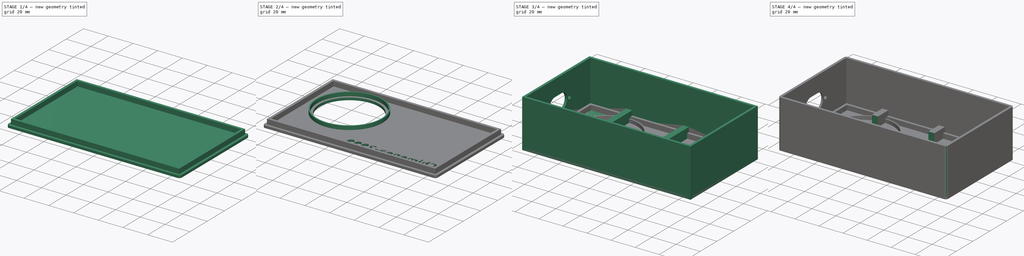
[diagram: build sequence overview — one tinted view per stage of 4, left to right]
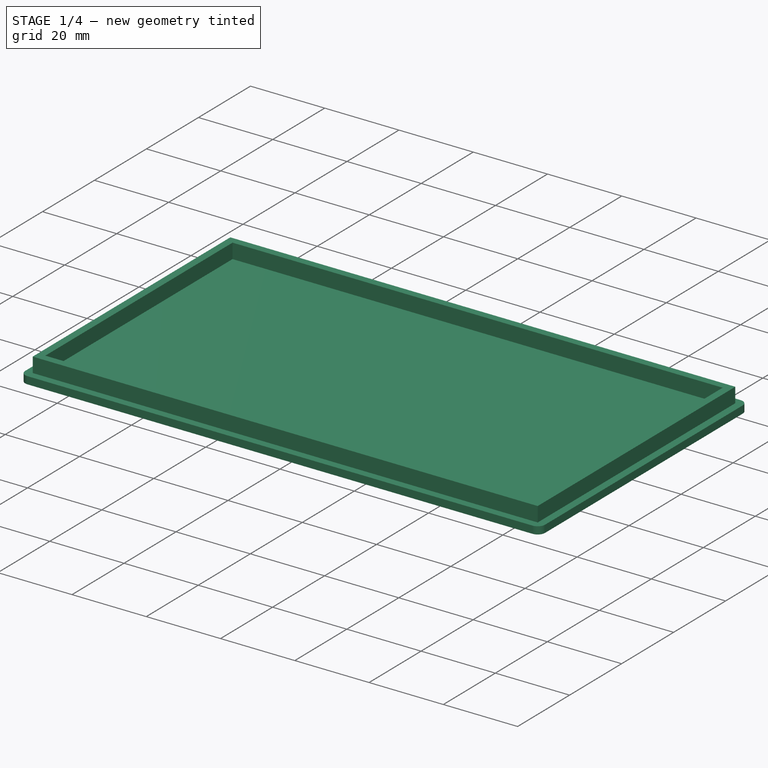
[diagram: stage 1 of 4 — iso view after this stage's code; geometry added in this stage tinted green]
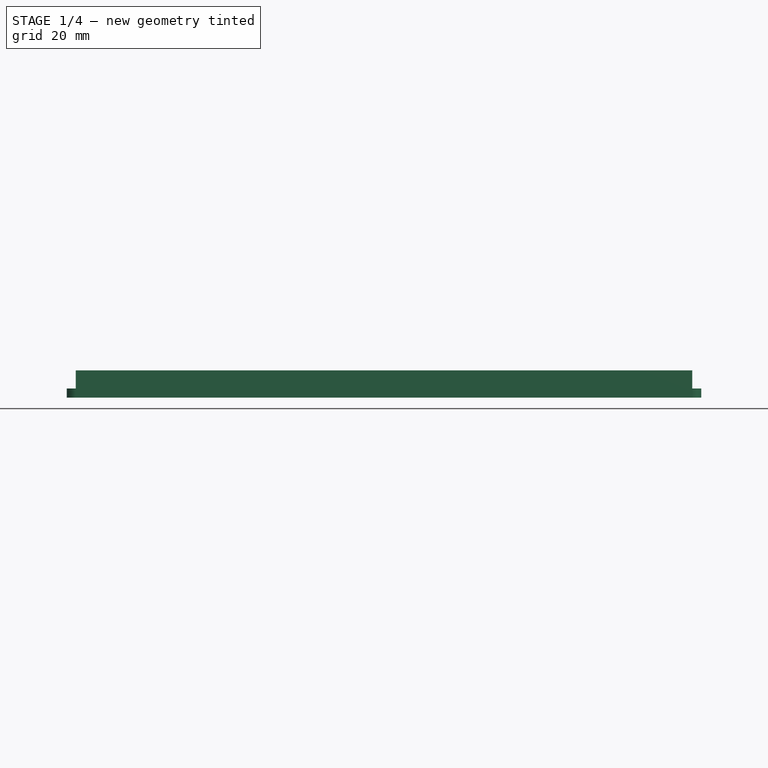
[diagram: stage 1 of 4 — front view after this stage's code; geometry added in this stage tinted green]
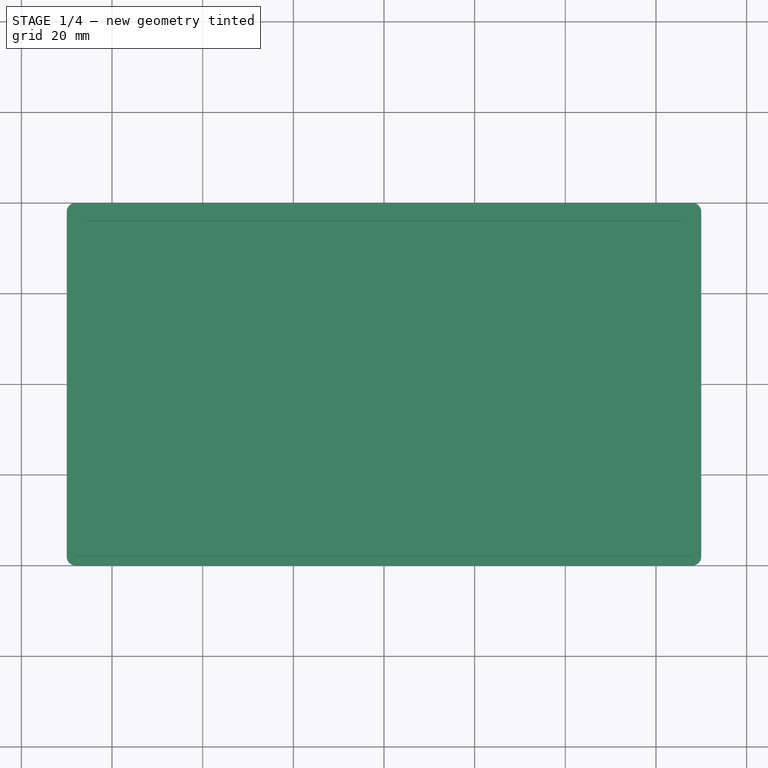
[diagram: stage 1 of 4 — top view after this stage's code; geometry added in this stage tinted green]
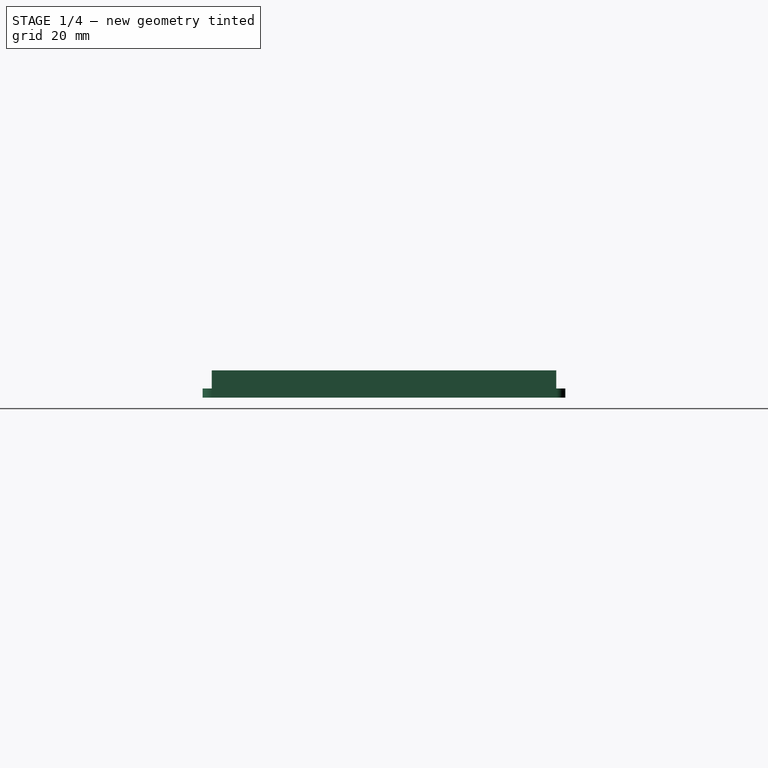
[diagram: stage 1 of 4 — right view after this stage's code; geometry added in this stage tinted green]
FCSTD DOCUMENT  (FreeCAD 1.0R39109 (Git))
Label: chimenea2000
License: All rights reserved
LicenseURL: https://en.wikipedia.org/wiki/All_rights_reserved
objects: Sketcher::SketchObject×10, PartDesign::Pocket×6, PartDesign::Pad×4, PartDesign::Fillet×3, PartDesign::Body×2, Part::Part2DObjectPython×1
note: 62 computed .brp shape members not serialized (recipe doc carries the construction recipe); baked Part::Feature solids carry a one-line shape summary decoded from their .brp

FEATURE [PartDesign::Body] Body
  AllowCompound = false
  Group = -> [Sketch,Pad,Sketch001,Pocket,Sketch002,Pocket001,Sketch003,Pocket002,Fillet,Fillet001,Sketch004,Pocket003]
  Origin = -> Origin
  Tip = -> Pocket003
FEATURE [Sketcher::SketchObject] Sketch005
  ArcFitTolerance = 1e-06
  AttachmentSupport = -> [XY_Plane001]
  FullyConstrained = true
  MakeInternals = false
  MapMode = 5
  sketch-geometry (4):
    g0: LineSegment StartX=-70 StartY=40 StartZ=0 EndX=-70 EndY=-40 EndZ=0
    g1: LineSegment StartX=-70 StartY=-40 StartZ=0 EndX=70 EndY=-40 EndZ=0
    g2: LineSegment StartX=70 StartY=-40 StartZ=0 EndX=70 EndY=40 EndZ=0
    g3: LineSegment StartX=70 StartY=40 StartZ=0 EndX=-70 EndY=40 EndZ=0
  constraints (11):
    c: Coincident(g0,g1)
    c: Coincident(g1,g2)
    c: Coincident(g2,g3)
    c: Coincident(g3,g0)
    c: Vertical(g0)
    c: Vertical(g2)
    c: Horizontal(g1)
    c: Horizontal(g3)
    c: DistanceX(g3,g3) = 140
    c: DistanceY(g0,g0) = 80
    c: Symmetric(g0,g1,g-1)
FEATURE [PartDesign::Pad] Pad001
  Direction = (0,0,1)
  Length = 2
  Length2 = 10
  Profile = -> Sketch005
  ReferenceAxis = -> Sketch005 [N_Axis]
  Refine = true
  Suppressed = false
  Type = 0
FEATURE [Sketcher::SketchObject] Sketch006
  ArcFitTolerance = 1e-06
  AttachmentSupport = -> [Pad001]
  FullyConstrained = true
  MakeInternals = false
  MapMode = 5
  Placement = pos=(0,0,2) rot=(0,0,1;0rad)
  sketch-geometry (8):
    g0: LineSegment StartX=-68 StartY=38 StartZ=0 EndX=-68 EndY=-38 EndZ=0
    g1: LineSegment StartX=-68 StartY=-38 StartZ=0 EndX=68 EndY=-38 EndZ=0
    g2: LineSegment StartX=68 StartY=-38 StartZ=0 EndX=68 EndY=38 EndZ=0
    g3: LineSegment StartX=68 StartY=38 StartZ=0 EndX=-68 EndY=38 EndZ=0
    g4: LineSegment StartX=-66 StartY=36 StartZ=0 EndX=-66 EndY=-36 EndZ=0
    g5: LineSegment StartX=-66 StartY=-36 StartZ=0 EndX=66 EndY=-36 EndZ=0
    g6: LineSegment StartX=66 StartY=-36 StartZ=0 EndX=66 EndY=36 EndZ=0
    g7: LineSegment StartX=66 StartY=36 StartZ=0 EndX=-66 EndY=36 EndZ=0
  constraints (22):
    c: Coincident(g0,g1)
    c: Coincident(g1,g2)
    c: Coincident(g2,g3)
    c: Coincident(g3,g0)
    c: Vertical(g0)
    c: Vertical(g2)
    c: Horizontal(g1)
    c: Horizontal(g3)
    c: Symmetric(g1,g0,g-1)
    c: DistanceX(g3,g3) = 136
    c: DistanceY(g0,g0) = 76
    c: Coincident(g4,g5)
    c: Coincident(g5,g6)
    c: Coincident(g6,g7)
    c: Coincident(g7,g4)
    c: Vertical(g4)
    c: Vertical(g6)
    c: Horizontal(g5)
    c: Horizontal(g7)
    c: Symmetric(g5,g4,g-1)
    c: DistanceX(g0,g4) = 2
    c: DistanceY(g4,g0) = 2
FEATURE [PartDesign::Pad] Pad002
  BaseFeature = -> Pad001
  Direction = (0,0,1)
  Length = 4
  Length2 = 10
  Profile = -> Sketch006
  ReferenceAxis = -> Sketch006 [N_Axis]
  Refine = true
  Suppressed = false
  Type = 0
FEATURE [PartDesign::Fillet] Fillet002
  Base = -> Pad002 [Edge5,Edge8,Edge2,Edge1]
  BaseFeature = -> Pad002
  Radius = 2
  Refine = true
  SupportTransform = false
  Suppressed = false
  UseAllEdges = false
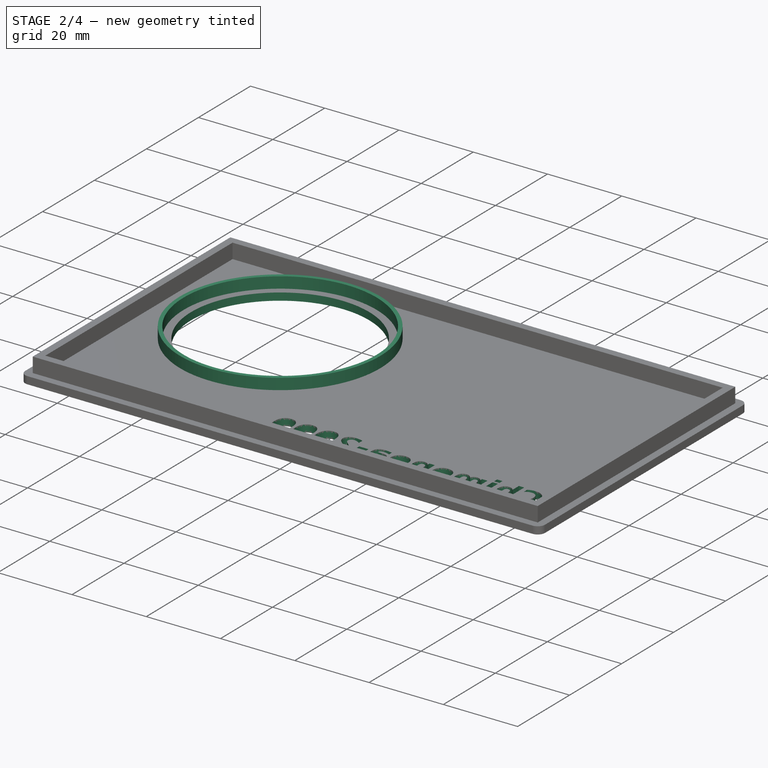
[diagram: stage 2 of 4 — iso view after this stage's code; geometry added in this stage tinted green]
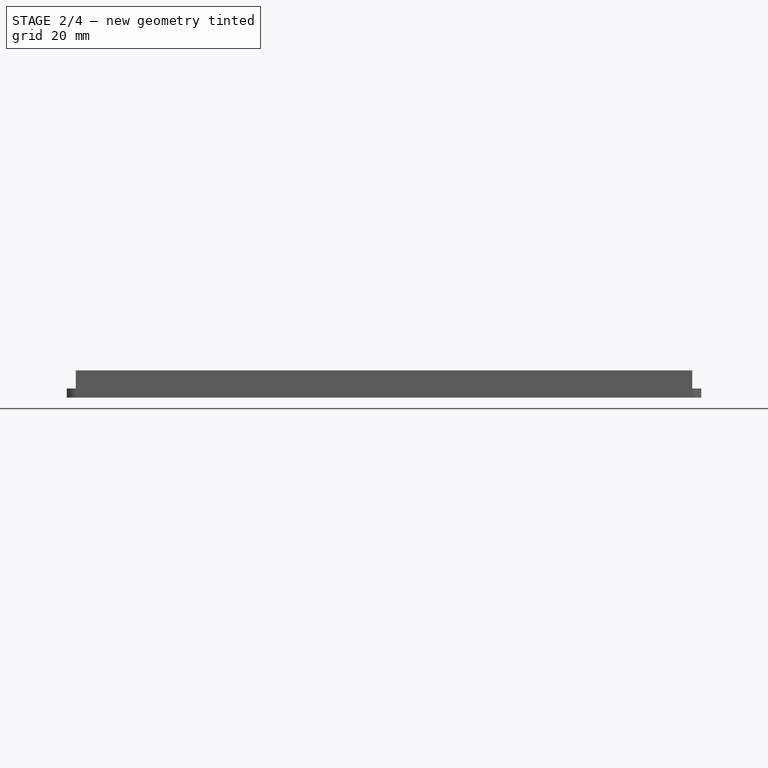
[diagram: stage 2 of 4 — front view after this stage's code; geometry added in this stage tinted green]
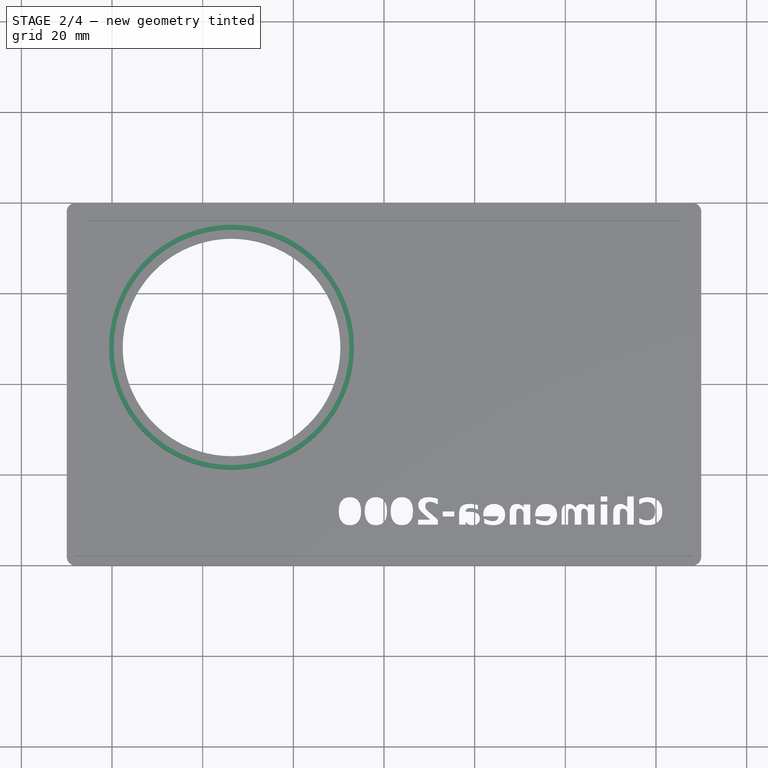
[diagram: stage 2 of 4 — top view after this stage's code; geometry added in this stage tinted green]
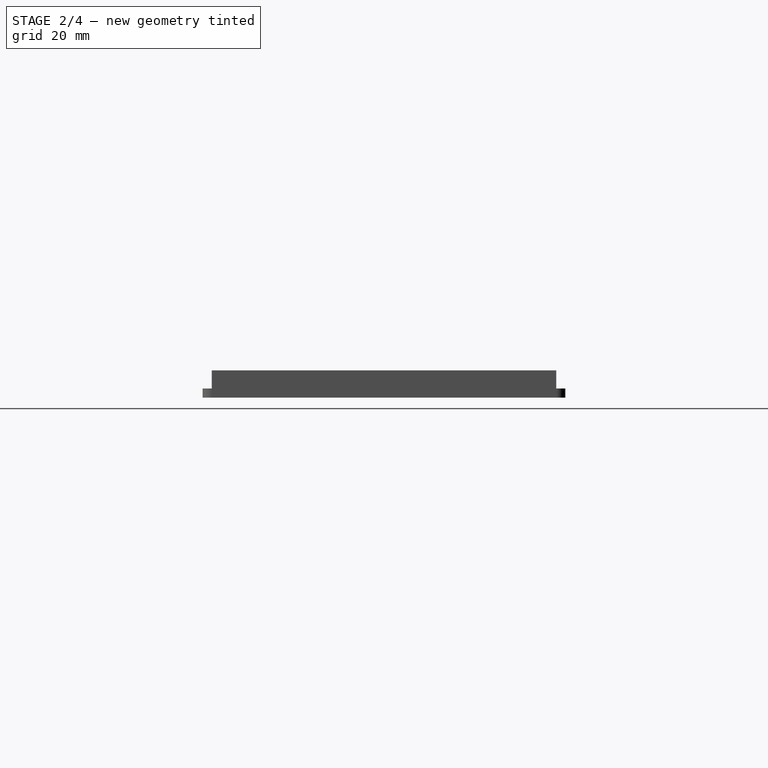
[diagram: stage 2 of 4 — right view after this stage's code; geometry added in this stage tinted green]
FEATURE [Part::Part2DObjectPython] ShapeString  # Draft 2D object (typed FeaturePython)
  FontFile = <path>
  Fuse = false
  Justification = 6
  JustificationReference = 0
  KeepLeftMargin = false
  MakeFace = true
  ObliqueAngle = 0
  Placement = pos=(61.42,-31.01,0) rot=(0,-1,0;3.14159rad)
  ScaleToSize = true
  Size = 6
  String = Chimenea-2000
  Tracking = 0
FEATURE [PartDesign::Pocket] Pocket004
  BaseFeature = -> Fillet002
  Direction = (1e-16,0,1)
  Length = 5
  Length2 = 5
  Profile = -> ShapeString
  ReferenceAxis = -> ShapeString [N_Axis]
  Refine = true
  Suppressed = false
  Type = 0
FEATURE [Sketcher::SketchObject] Sketch007
  ArcFitTolerance = 1e-06
  AttachmentSupport = -> [Pocket004]
  FullyConstrained = true
  MakeInternals = false
  MapMode = 5
  Placement = pos=(0,0,0) rot=(1,0,0;3.14159rad)
FEATURE [Sketcher::SketchObject] Sketch008
  ArcFitTolerance = 1e-06
  AttachmentSupport = -> [Pocket004]
  FullyConstrained = false
  MakeInternals = false
  MapMode = 5
  Placement = pos=(0,0,0) rot=(1,0,0;3.14159rad)
  sketch-geometry (1):
    g0: Circle CenterX=-33.6277 CenterY=-8.09743 CenterZ=0 NormalX=0 NormalY=0 NormalZ=1 AngleXU=0 Radius=24
  constraints (1):
    c: Diameter(g0) = 48
FEATURE [PartDesign::Pocket] Pocket005
  BaseFeature = -> Pocket004
  Direction = (0,0,1)
  Length = 5
  Length2 = 5
  Profile = -> Sketch008
  ReferenceAxis = -> Sketch008 [N_Axis]
  Refine = true
  Suppressed = false
  Type = 0
FEATURE [Sketcher::SketchObject] Sketch009
  ArcFitTolerance = 1e-06
  AttachmentSupport = -> [Pocket005]
  ExternalGeometry = -> [Pocket005]
  FullyConstrained = true
  MakeInternals = false
  MapMode = 5
  Placement = pos=(0,0,2) rot=(0,0,1;0rad)
  sketch-geometry (2):
    g0: Circle CenterX=-33.6277 CenterY=8.09743 CenterZ=0 NormalX=0 NormalY=0 NormalZ=1 AngleXU=0 Radius=26
    g1: Circle CenterX=-33.6277 CenterY=8.09743 CenterZ=0 NormalX=0 NormalY=0 NormalZ=1 AngleXU=0 Radius=27
  constraints (4):
    c: Coincident(g0,g-3)
    c: Coincident(g1,g0)
    c: Diameter(g0) = 52
    c: Diameter(g1) = 54
FEATURE [PartDesign::Pad] Pad003
  BaseFeature = -> Pocket005
  Direction = (0,0,1)
  Length = 3
  Length2 = 10
  Profile = -> Sketch009
  ReferenceAxis = -> Sketch009 [N_Axis]
  Refine = true
  Suppressed = false
  Type = 0
FEATURE [PartDesign::Body] Body001  label="tapa"
  AllowCompound = false
  Group = -> [Sketch005,Pad001,Sketch006,Pad002,Fillet002,ShapeString,Pocket004,Sketch007,Sketch008,Pocket005,Sketch009,Pad003]
  Origin = -> Origin001
  Placement = pos=(0,7e-16,43) rot=(1,0,0;3.14159rad)
  Tip = -> Pad003
note: 1 file-system path scrubbed to <path> (originals preserved in the JSON sidecar)
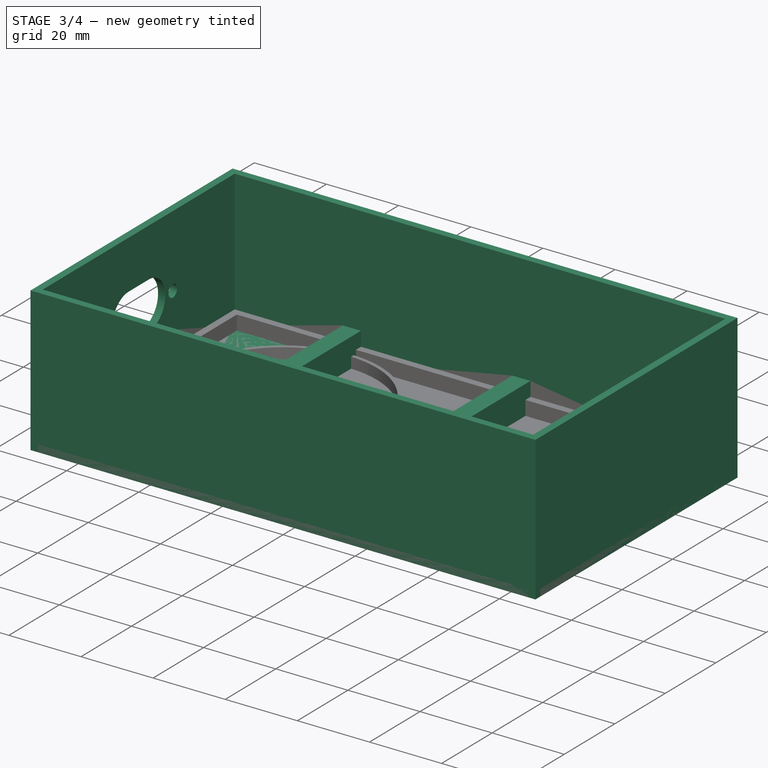
[diagram: stage 3 of 4 — iso view after this stage's code; geometry added in this stage tinted green]
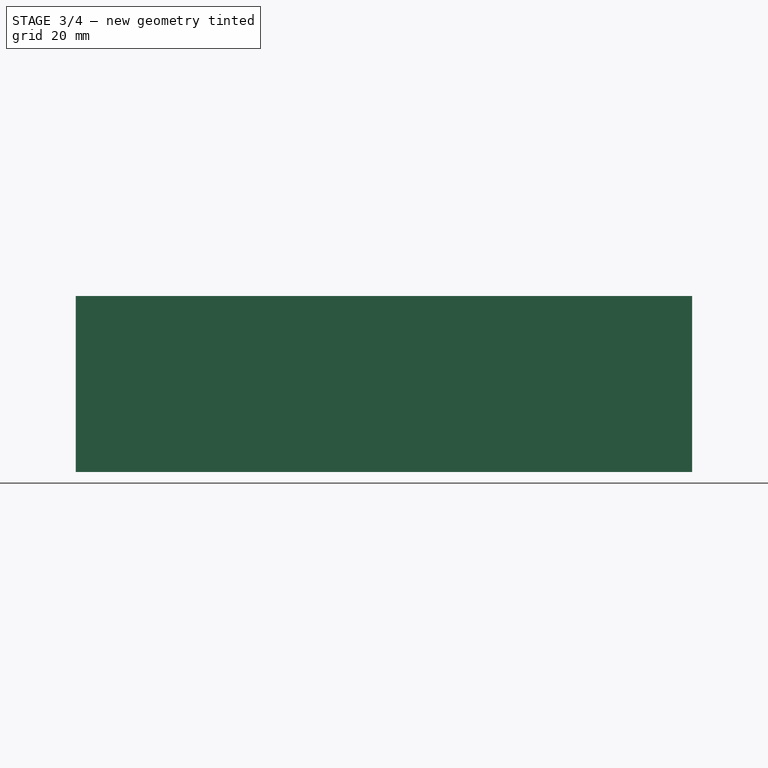
[diagram: stage 3 of 4 — front view after this stage's code; geometry added in this stage tinted green]
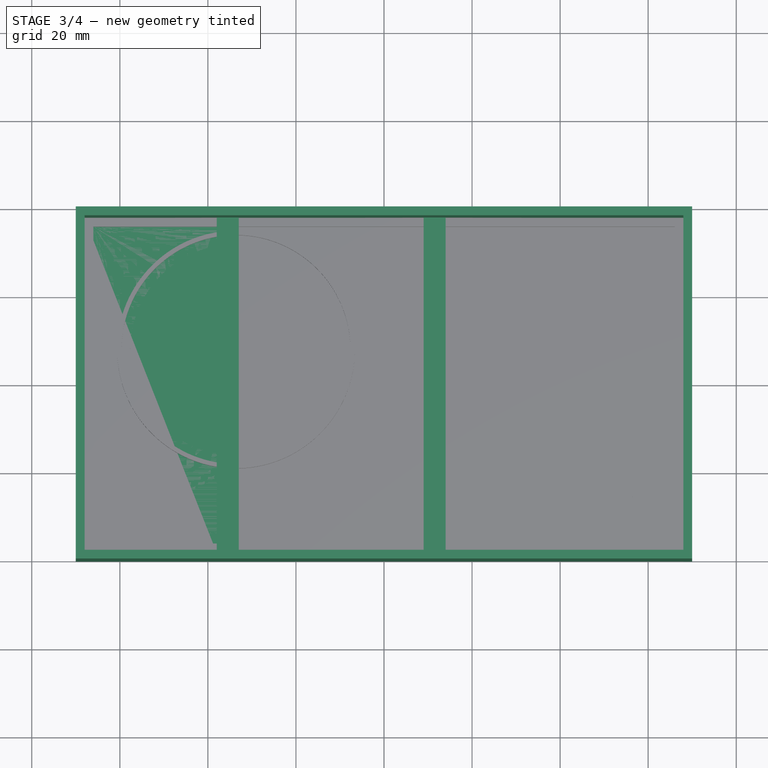
[diagram: stage 3 of 4 — top view after this stage's code; geometry added in this stage tinted green]
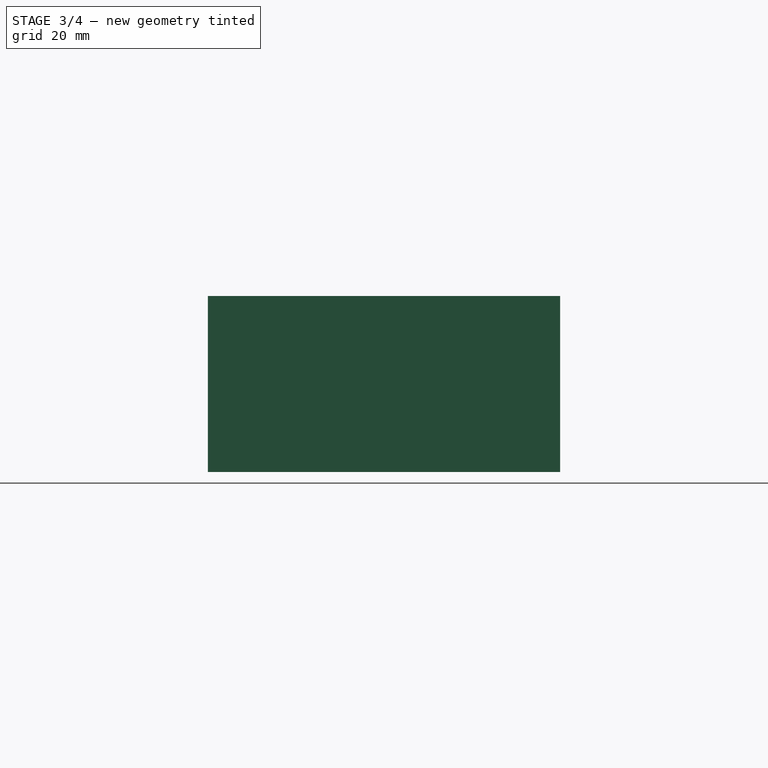
[diagram: stage 3 of 4 — right view after this stage's code; geometry added in this stage tinted green]
FEATURE [Sketcher::SketchObject] Sketch
  ArcFitTolerance = 1e-06
  AttachmentSupport = -> [XY_Plane]
  FullyConstrained = true
  MakeInternals = false
  MapMode = 5
  sketch-geometry (4):
    g0: LineSegment StartX=-70 StartY=40 StartZ=0 EndX=-70 EndY=-40 EndZ=0
    g1: LineSegment StartX=-70 StartY=-40 StartZ=0 EndX=70 EndY=-40 EndZ=0
    g2: LineSegment StartX=70 StartY=-40 StartZ=0 EndX=70 EndY=40 EndZ=0
    g3: LineSegment StartX=70 StartY=40 StartZ=0 EndX=-70 EndY=40 EndZ=0
  constraints (11):
    c: Coincident(g0,g1)
    c: Coincident(g1,g2)
    c: Coincident(g2,g3)
    c: Coincident(g3,g0)
    c: Vertical(g0)
    c: Vertical(g2)
    c: Horizontal(g1)
    c: Horizontal(g3)
    c: Symmetric(g0,g1,g-1)
    c: DistanceX(g3,g3) = 140
    c: DistanceY(g0,g0) = 80
FEATURE [PartDesign::Pad] Pad
  Direction = (0,0,1)
  Length = 40
  Length2 = 10
  Profile = -> Sketch
  ReferenceAxis = -> Sketch [N_Axis]
  Refine = true
  Suppressed = false
  Type = 0
FEATURE [Sketcher::SketchObject] Sketch001
  ArcFitTolerance = 1e-06
  AttachmentSupport = -> [Pad]
  ExternalGeometry = -> [Pad]
  FullyConstrained = true
  MakeInternals = false
  MapMode = 5
  Placement = pos=(0,0,40) rot=(0,0,1;0rad)
  sketch-geometry (12):
    g0: LineSegment StartX=-68 StartY=-38 StartZ=0 EndX=-68 EndY=38 EndZ=0
    g1: LineSegment StartX=-68 StartY=38 StartZ=0 EndX=-38 EndY=38 EndZ=0
    g2: LineSegment StartX=-38 StartY=38 StartZ=0 EndX=-38 EndY=-38 EndZ=0
    g3: LineSegment StartX=-38 StartY=-38 StartZ=0 EndX=-68 EndY=-38 EndZ=0
    g4: LineSegment StartX=-33 StartY=38 StartZ=0 EndX=-33 EndY=-38 EndZ=0
    g5: LineSegment StartX=-33 StartY=-38 StartZ=0 EndX=9 EndY=-38 EndZ=0
    g6: LineSegment StartX=9 StartY=-38 StartZ=0 EndX=9 EndY=38 EndZ=0
    g7: LineSegment StartX=9 StartY=38 StartZ=0 EndX=-33 EndY=38 EndZ=0
    g8: LineSegment StartX=14 StartY=38 StartZ=0 EndX=14 EndY=-38 EndZ=0
    g9: LineSegment StartX=14 StartY=-38 StartZ=0 EndX=68 EndY=-38 EndZ=0
    g10: LineSegment StartX=68 StartY=-38 StartZ=0 EndX=68 EndY=38 EndZ=0
    g11: LineSegment StartX=68 StartY=38 StartZ=0 EndX=14 EndY=38 EndZ=0
  constraints (36):
    c: Vertical(g0)
    c: Coincident(g0,g1)
    c: Horizontal(g1)
    c: Coincident(g1,g2)
    c: Vertical(g2)
    c: Coincident(g2,g3)
    c: Coincident(g3,g0)
    c: Horizontal(g3)
    c: Vertical(g4)
    c: Coincident(g4,g5)
    c: Horizontal(g5)
    c: Coincident(g5,g6)
    c: Vertical(g6)
    c: Coincident(g6,g7)
    c: Coincident(g7,g4)
    c: Horizontal(g7)
    c: Vertical(g8)
    c: Coincident(g8,g9)
    c: Horizontal(g9)
    c: Coincident(g9,g10)
    c: Vertical(g10)
    c: Coincident(g10,g11)
    c: Coincident(g11,g8)
    c: Horizontal(g11)
    c: Horizontal(g0,g4)
    c: Horizontal(g4,g8)
    c: DistanceY(g0,g-4) = 2
    c: DistanceX(g-4,g0) = 2
    c: DistanceY(g-4,g0) = 2
    c: Equal(g4,g0)
    c: Equal(g8,g0)
    c: DistanceX(g10,g-5) = 2
    c: DistanceX(g1,g1) = 30
    c: DistanceX(g1,g4) = 5
    c: DistanceX(g6,g8) = 5
    c: DistanceX(g1,g8) = 52
FEATURE [PartDesign::Pocket] Pocket
  BaseFeature = -> Pad
  Direction = (0,0,-1)
  Length = 38
  Length2 = 5
  Profile = -> Sketch001
  ReferenceAxis = -> Sketch001 [N_Axis]
  Refine = true
  Suppressed = false
  Type = 0
FEATURE [Sketcher::SketchObject] Sketch002
  ArcFitTolerance = 1e-06
  AttachmentSupport = -> [Pocket]
  ExternalGeometry = -> [Pocket]
  FullyConstrained = true
  MakeInternals = false
  MapMode = 5
  Placement = pos=(0,0,40) rot=(0,0,1;0rad)
  sketch-geometry (4):
    g0: LineSegment StartX=-68 StartY=38 StartZ=0 EndX=-68 EndY=-38 EndZ=0
    g1: LineSegment StartX=-68 StartY=-38 StartZ=0 EndX=68 EndY=-38 EndZ=0
    g2: LineSegment StartX=68 StartY=-38 StartZ=0 EndX=68 EndY=38 EndZ=0
    g3: LineSegment StartX=68 StartY=38 StartZ=0 EndX=-68 EndY=38 EndZ=0
  constraints (10):
    c: Coincident(g0,g1)
    c: Coincident(g1,g2)
    c: Coincident(g2,g3)
    c: Coincident(g3,g0)
    c: Vertical(g0)
    c: Vertical(g2)
    c: Horizontal(g1)
    c: Horizontal(g3)
    c: Coincident(g0,g-3)
    c: Coincident(g1,g-4)
FEATURE [PartDesign::Pocket] Pocket001
  BaseFeature = -> Pocket
  Direction = (0,0,-1)
  Length = 30
  Length2 = 5
  Profile = -> Sketch002
  ReferenceAxis = -> Sketch002 [N_Axis]
  Refine = true
  Suppressed = false
  Type = 0
FEATURE [Sketcher::SketchObject] Sketch003
  ArcFitTolerance = 1e-06
  AttachmentSupport = -> [Pocket001]
  ExternalGeometry = -> [Pocket001]
  FullyConstrained = false
  MakeInternals = false
  MapMode = 5
  Placement = pos=(-70,0,0) rot=(0.57735,-0.57735,-0.57735;2.0944rad)
  sketch-geometry (11):
    g0: ArcOfCircle CenterX=-4 CenterY=19.9803 CenterZ=0 NormalX=0 NormalY=0 NormalZ=1 AngleXU=0 Radius=6.5 StartAngle=1.5708 EndAngle=4.71466
    g1: ArcOfCircle CenterX=4 CenterY=19.9803 CenterZ=0 NormalX=0 NormalY=0 NormalZ=1 AngleXU=0 Radius=6.5 StartAngle=4.78949 EndAngle=7.85398
    g2: LineSegment StartX=-4 StartY=26.4803 StartZ=0 EndX=4 EndY=26.4803 EndZ=0
    g3: LineSegment StartX=-3.98522 StartY=13.4803 StartZ=0 EndX=4.50066 EndY=13.4996 EndZ=0
    g4: LineSegment [constr] StartX=-10.5 StartY=30.7382 StartZ=0 EndX=-10.5 EndY=5.83086 EndZ=0
    g5: LineSegment [constr] StartX=10.5 StartY=29.3771 StartZ=0 EndX=10.5 EndY=5.4906 EndZ=0
    g6: LineSegment [constr] StartX=-40 StartY=40 StartZ=0 EndX=-4 EndY=26.4803 EndZ=0
    g7: LineSegment [constr] StartX=-3.98522 StartY=13.4803 StartZ=0 EndX=-40 EndY=0 EndZ=0
    g8: LineSegment [constr] StartX=4 StartY=26.4803 StartZ=0 EndX=40 EndY=40 EndZ=0
    g9: Circle CenterX=-13.5 CenterY=19.9803 CenterZ=0 NormalX=0 NormalY=0 NormalZ=1 AngleXU=0 Radius=1.7
    g10: Circle CenterX=13.5 CenterY=19.9803 CenterZ=0 NormalX=0 NormalY=0 NormalZ=1 AngleXU=0 Radius=1.7
  constraints (25):
    c: Equal(g0,g1)
    c: Symmetric(g0,g1,g-2)
    c: Diameter(g1) = 13
    c: Vertical(g4)
    c: Vertical(g5)
    c: Tangent(g4,g0)
    c: Tangent(g5,g1)
    c: DistanceX(g4,g5) = 21
    c: Tangent(g0,g2) = 1.5708
    c: Coincident(g1,g2)
    c: Tangent(g0,g3) = -1.5708
    c: Coincident(g1,g3)
    c: Coincident(g6,g0)
    c: Coincident(g1,g8)
    c: Coincident(g7,g0)
    c: Coincident(g7,g-4)
    c: Coincident(g6,g-4)
    c: Coincident(g8,g-3)
    c: Equal(g6,g8)
    c: Equal(g8,g7)
    c: Equal(g10,g9)
    c: Diameter(g9) = 3.4
    c: Horizontal(g9,g0)
    c: DistanceX(g9,g10) = 27
    c: Symmetric(g9,g10,g-2)
FEATURE [PartDesign::Pocket] Pocket002
  BaseFeature = -> Pocket001
  Direction = (1,0,0)
  Length = 5
  Length2 = 5
  Profile = -> Sketch003
  ReferenceAxis = -> Sketch003 [N_Axis]
  Refine = true
  Suppressed = false
  Type = 0
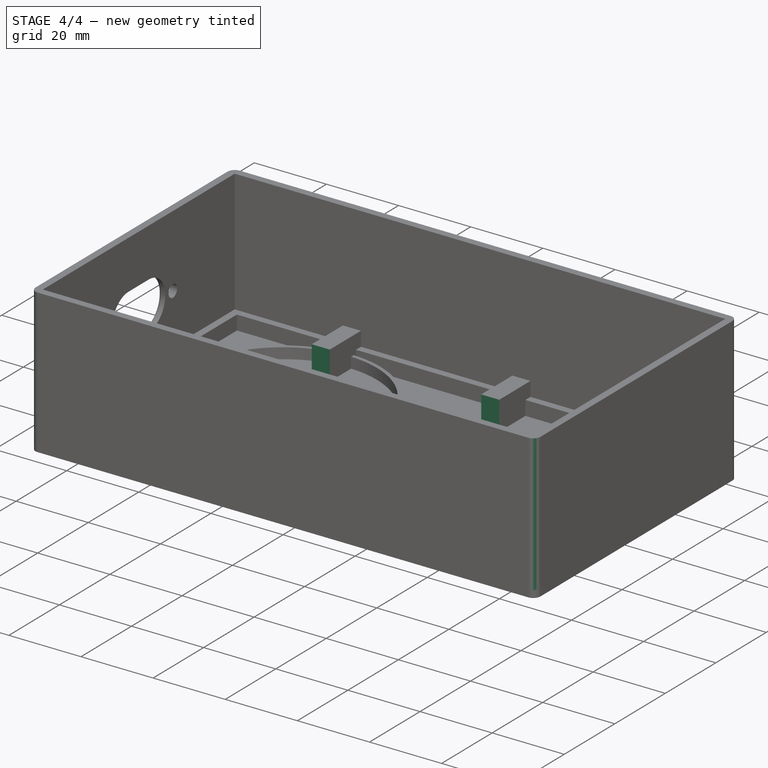
[diagram: stage 4 of 4 — iso view after this stage's code; geometry added in this stage tinted green]
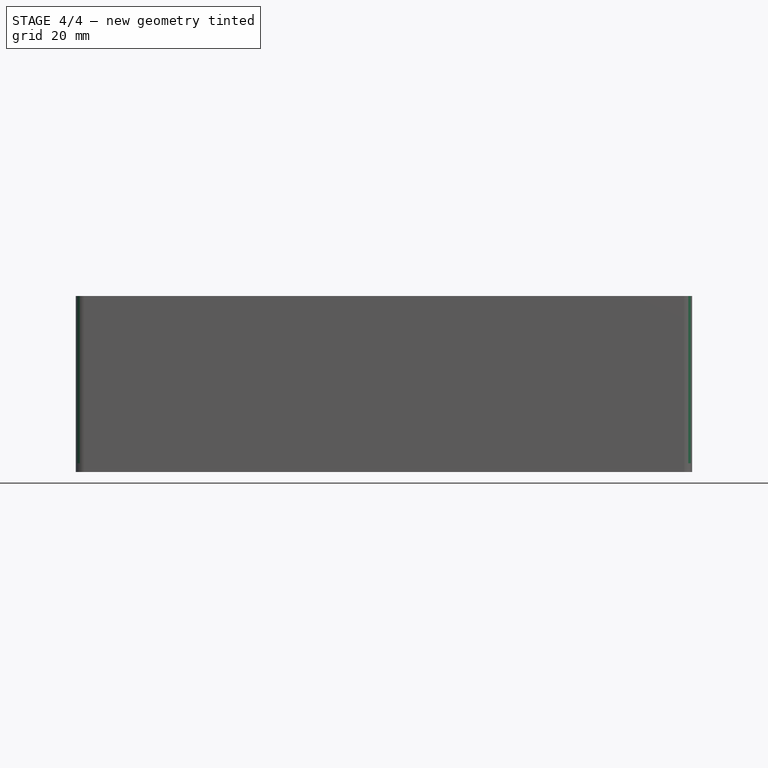
[diagram: stage 4 of 4 — front view after this stage's code; geometry added in this stage tinted green]
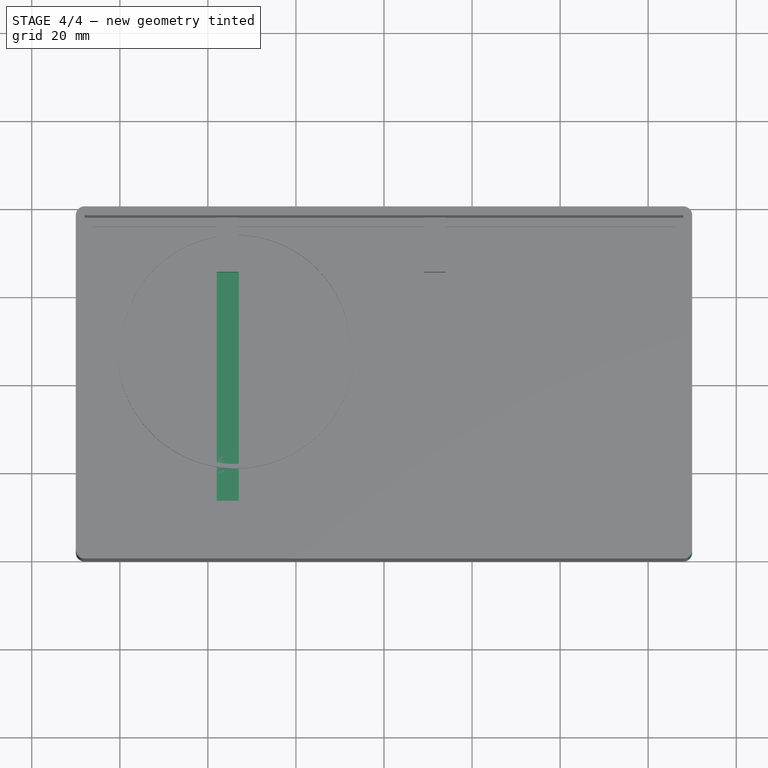
[diagram: stage 4 of 4 — top view after this stage's code; geometry added in this stage tinted green]
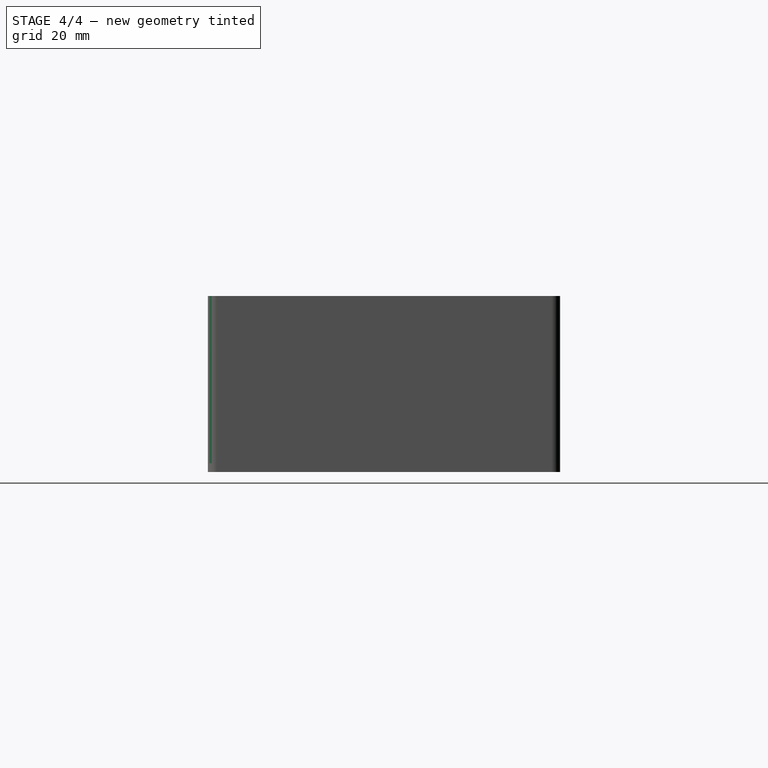
[diagram: stage 4 of 4 — right view after this stage's code; geometry added in this stage tinted green]
FEATURE [PartDesign::Fillet] Fillet
  Base = -> Pocket002 [Edge4,Edge1,Edge2,Edge14,Edge22,Edge15,Edge11,Edge12]
  BaseFeature = -> Pocket002
  Radius = 2
  Refine = true
  SupportTransform = false
  Suppressed = false
  UseAllEdges = false
FEATURE [PartDesign::Fillet] Fillet001
  Base = -> Fillet [Edge9,Edge6,Edge7,Edge8]
  BaseFeature = -> Fillet
  Radius = 1
  Refine = true
  SupportTransform = false
  Suppressed = false
  UseAllEdges = false
FEATURE [Sketcher::SketchObject] Sketch004
  ArcFitTolerance = 1e-06
  AttachmentSupport = -> [Fillet001]
  ExternalGeometry = -> [Fillet001]
  FullyConstrained = false
  MakeInternals = false
  MapMode = 5
  Placement = pos=(0,0,10) rot=(0,0,1;0rad)
  sketch-geometry (4):
    g0: LineSegment StartX=-62.2384 StartY=-26.3437 StartZ=0 EndX=-62.2384 EndY=25.6375 EndZ=0
    g1: LineSegment StartX=-62.2384 StartY=25.6375 StartZ=0 EndX=46.2793 EndY=25.6375 EndZ=0
    g2: LineSegment StartX=46.2793 StartY=25.6375 StartZ=0 EndX=46.2793 EndY=-26.3437 EndZ=0
    g3: LineSegment StartX=46.2793 StartY=-26.3437 StartZ=0 EndX=-62.2384 EndY=-26.3437 EndZ=0
  constraints (8):
    c: Coincident(g0,g1)
    c: Coincident(g1,g2)
    c: Coincident(g2,g3)
    c: Coincident(g3,g0)
    c: Vertical(g0)
    c: Vertical(g2)
    c: Horizontal(g1)
    c: Horizontal(g3)
FEATURE [PartDesign::Pocket] Pocket003
  BaseFeature = -> Fillet001
  Direction = (0,0,-1)
  Length = 8
  Length2 = 5
  Profile = -> Sketch004
  ReferenceAxis = -> Sketch004 [N_Axis]
  Refine = true
  Suppressed = false
  Type = 0
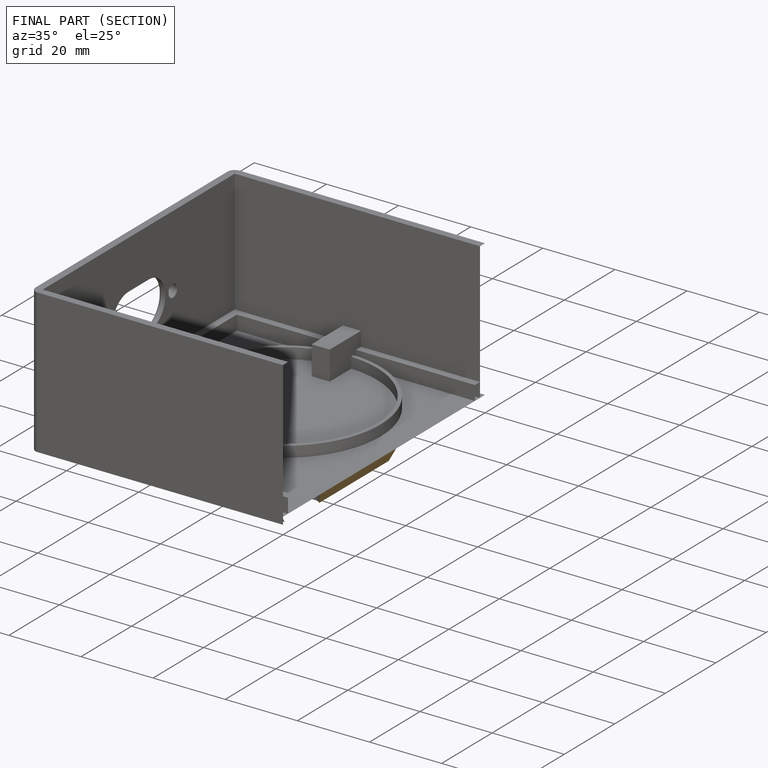
[diagram: finished part — half-section view (interior)]
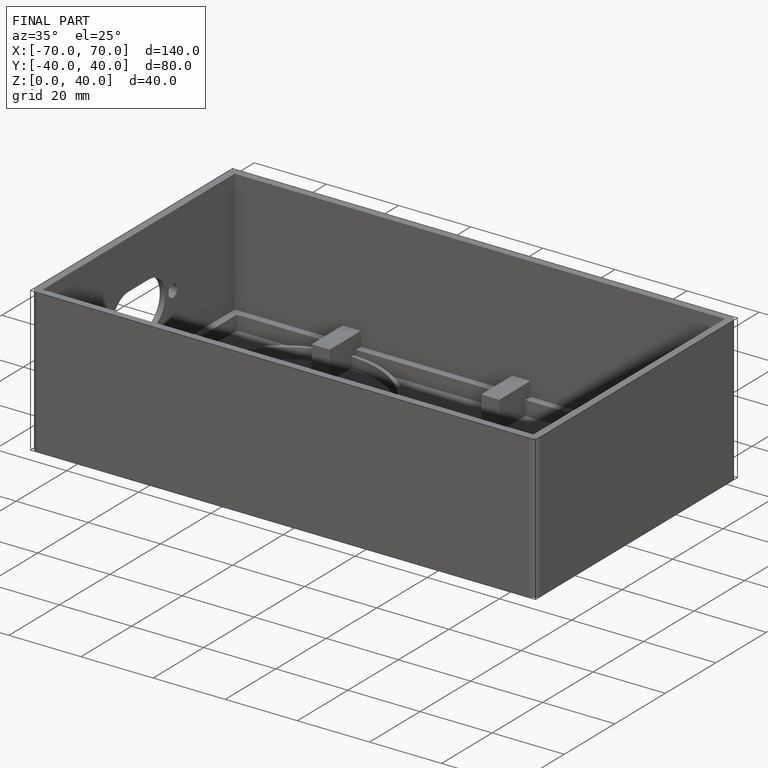
[diagram: finished part — iso view with bounding-box wireframe]
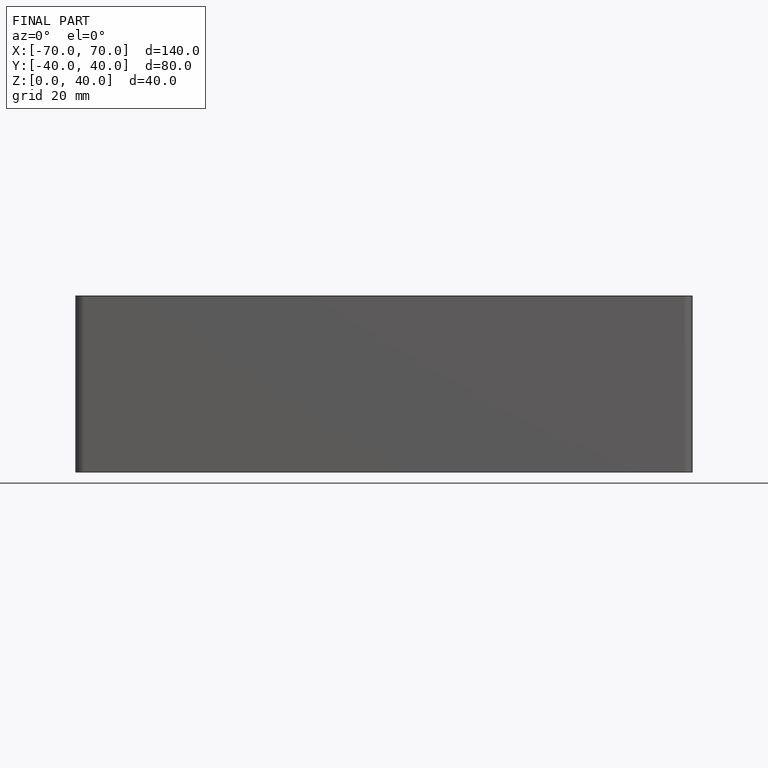
[diagram: finished part — front view with bounding-box wireframe]
